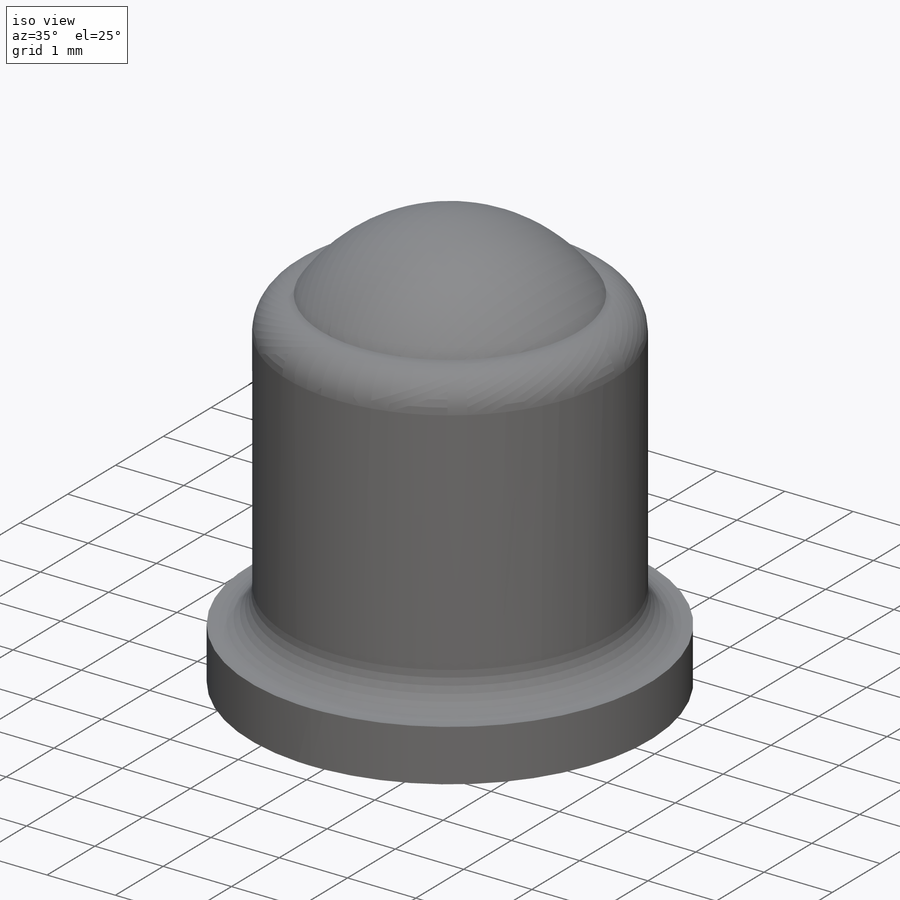
[diagram: iso view]
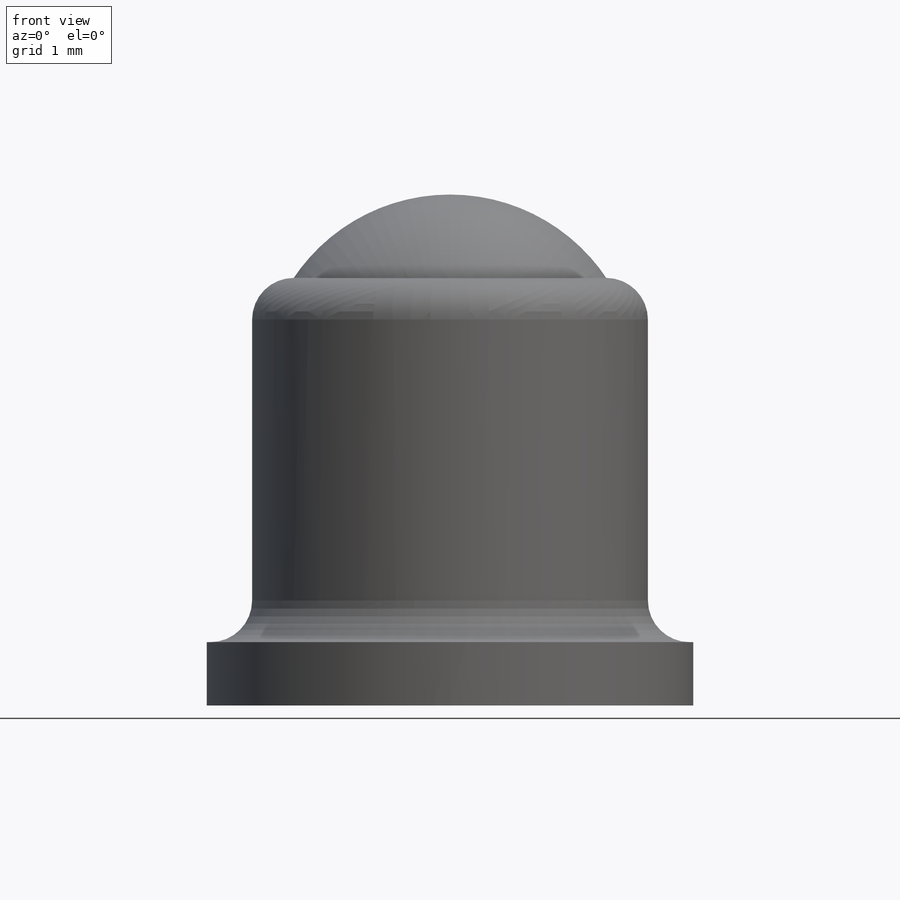
[diagram: front view]
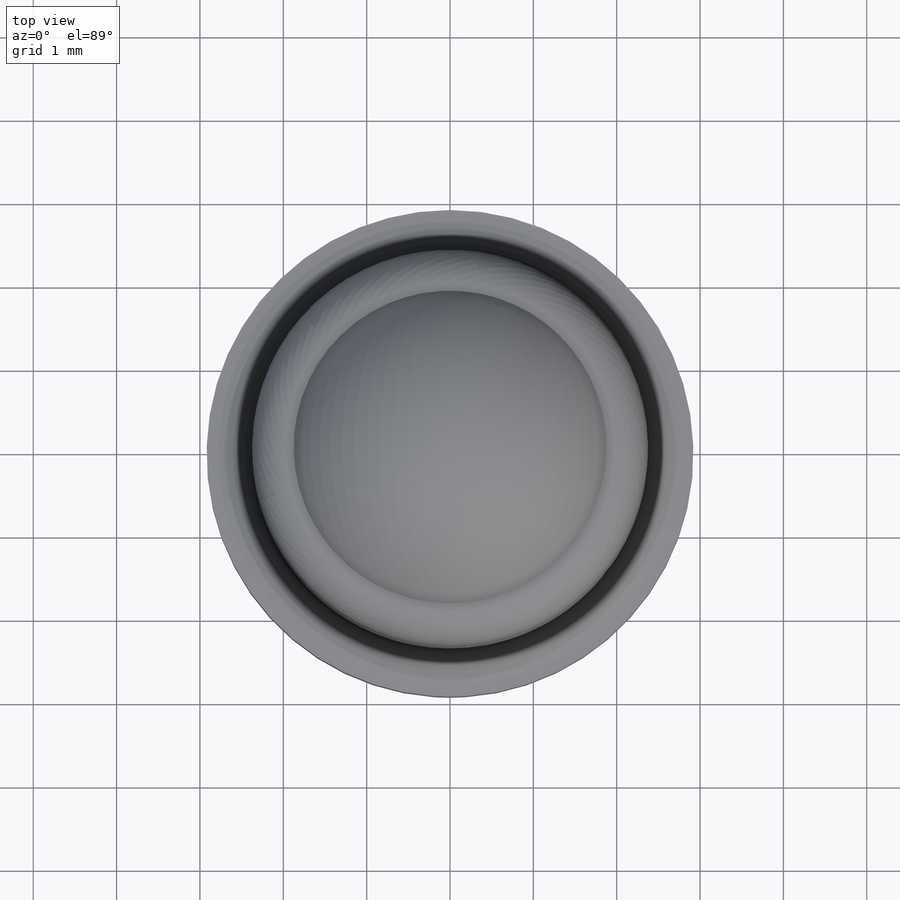
[diagram: top view]
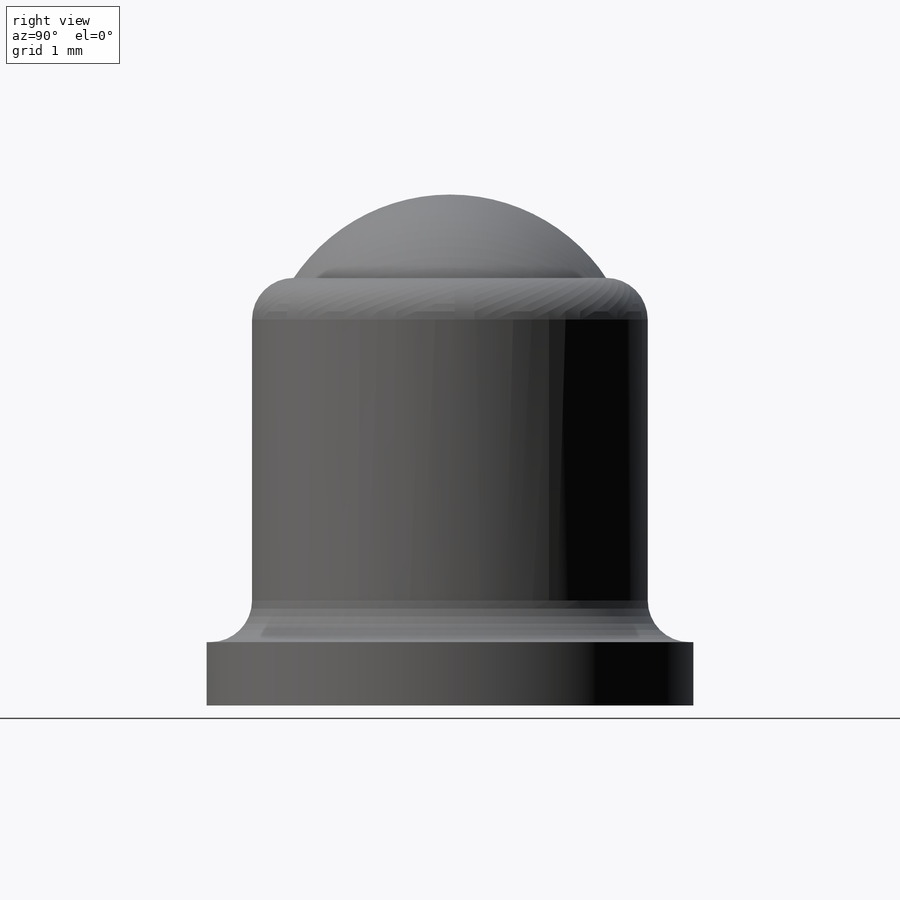
[diagram: right view]
SOLIDWORKS PART (.sldprt)
format: sldprt  version: not decoded by parser v0  size: 219,648 bytes
history: native  units: mm
features: sketch x2, extrude x2, material x1, fillet x1, dome x1, plane x1 (+12 scaffold rows collapsed)
feature tree (20):
  scaffold x12  (default folders/planes/origin — collapsed)
  material  "Material <not specified>"
  sketch  "Sketch1"  dims[D1=5.84mm]
  extrude  "Boss-Extrude1"  Depth=0.76mm
  sketch  "Sketch3"  dims[D1=4.75mm]
  extrude  "Boss-Extrude2"  Depth=4.37mm
  fillet  "Fillet1"  Radius=0.5mm
  dome  "Dome1"
  plane  "Plane1"
decode coverage: 5 of 6 modeling features carry decoded parameters
note: suppression state not decoded; provenance and decode notes live in map.json
